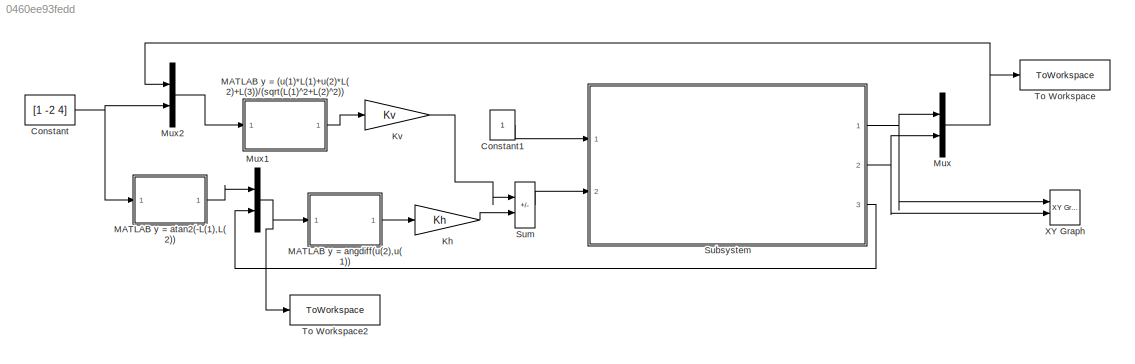
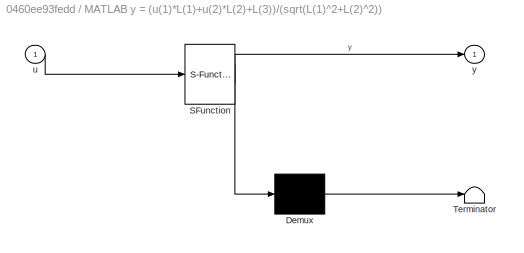
MODEL slx_0460ee93fedd
KIND model
CONFIG AbsTol = auto
CONFIG EnableMultiTasking = off
CONFIG FixedStep = auto
CONFIG MaxStep = auto
CONFIG MinStep = auto
CONFIG RelTol = 1e-3
CONFIG SampleTimeConstraint = Unconstrained
CONFIG SolverName = VariableStepAuto
CONFIG StartTime = 0.0
CONFIG StopTime = 50
BLOCK [Constant] Constant
  Value = [1 -2 4]
BLOCK [Constant] Constant1
BLOCK [Gain] Kh
  Gain = Kh
BLOCK [Gain] Kv
  Gain = Kv
BLOCK [SubSystem] MATLAB y = (u(1)*L(1)+u(2)*L(2)+L(3))//(sqrt(L(1)^2+L(2)^2))
  ErrorFcn = Stateflow.Translate.translate
  PermitHierarchicalResolution = ExplicitOnly
  Ports = [1, 1]
  RequestExecContextInheritance = off
  SFBlockType = MATLAB Function
  TreatAsAtomicUnit = on
BLOCK [Demux] MATLAB y = (u(1)*L(1)+u(2)*L(2)+L(3))//(sqrt(L(1)^2+L(2)^2))/ Demux 
  Outputs = 1
  Ports = [1, 1]
BLOCK [S-Function] MATLAB y = (u(1)*L(1)+u(2)*L(2)+L(3))//(sqrt(L(1)^2+L(2)^2))/ SFunction 
  EnableBusSupport = on
  FunctionName = sf_sfun
  PortCounts = [1 2]
  Ports = [1, 2]
  SFcnIsStateOwnerBlock = off
  SFunctionDeploymentMode = off
  Tag = Stateflow S-Function 1
BLOCK [Terminator] MATLAB y = (u(1)*L(1)+u(2)*L(2)+L(3))//(sqrt(L(1)^2+L(2)^2))/ Terminator 
BLOCK [Inport] MATLAB y = (u(1)*L(1)+u(2)*L(2)+L(3))//(sqrt(L(1)^2+L(2)^2))/u
BLOCK [Outport] MATLAB y = (u(1)*L(1)+u(2)*L(2)+L(3))//(sqrt(L(1)^2+L(2)^2))/y
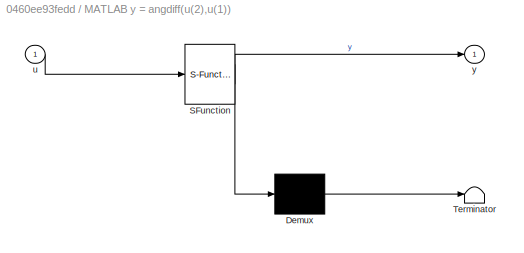
BLOCK [SubSystem] MATLAB y = angdiff(u(2),u(1))
  ErrorFcn = Stateflow.Translate.translate
  PermitHierarchicalResolution = ExplicitOnly
  Ports = [1, 1]
  RequestExecContextInheritance = off
  SFBlockType = MATLAB Function
  TreatAsAtomicUnit = on
BLOCK [Demux] MATLAB y = angdiff(u(2),u(1))/ Demux 
  Outputs = 1
  Ports = [1, 1]
BLOCK [S-Function] MATLAB y = angdiff(u(2),u(1))/ SFunction 
  EnableBusSupport = on
  FunctionName = sf_sfun
  PortCounts = [1 2]
  Ports = [1, 2]
  SFcnIsStateOwnerBlock = off
  SFunctionDeploymentMode = off
  Tag = Stateflow S-Function 2
BLOCK [Terminator] MATLAB y = angdiff(u(2),u(1))/ Terminator 
BLOCK [Inport] MATLAB y = angdiff(u(2),u(1))/u
BLOCK [Outport] MATLAB y = angdiff(u(2),u(1))/y
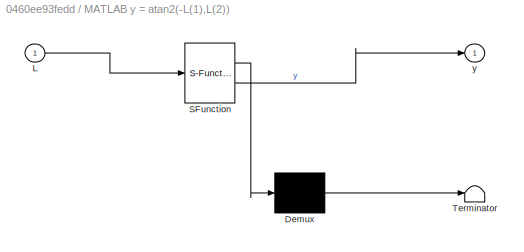
BLOCK [SubSystem] MATLAB y = atan2(-L(1),L(2))
  ErrorFcn = Stateflow.Translate.translate
  PermitHierarchicalResolution = ExplicitOnly
  Ports = [1, 1]
  RequestExecContextInheritance = off
  SFBlockType = MATLAB Function
  TreatAsAtomicUnit = on
BLOCK [Demux] MATLAB y = atan2(-L(1),L(2))/ Demux 
  Outputs = 1
  Ports = [1, 1]
BLOCK [S-Function] MATLAB y = atan2(-L(1),L(2))/ SFunction 
  EnableBusSupport = on
  FunctionName = sf_sfun
  PortCounts = [1 2]
  Ports = [1, 2]
  SFcnIsStateOwnerBlock = off
  SFunctionDeploymentMode = off
  Tag = Stateflow S-Function 3
BLOCK [Terminator] MATLAB y = atan2(-L(1),L(2))/ Terminator 
BLOCK [Inport] MATLAB y = atan2(-L(1),L(2))/L
BLOCK [Outport] MATLAB y = atan2(-L(1),L(2))/y
BLOCK [Mux] Mux
  DisplayOption = bar
  Inputs = 2
  Ports = [2, 1]
BLOCK [Mux] Mux1
  DisplayOption = bar
  Inputs = 2
  Ports = [2, 1]
BLOCK [Mux] Mux2
  DisplayOption = bar
  Inputs = 2
  Ports = [2, 1]
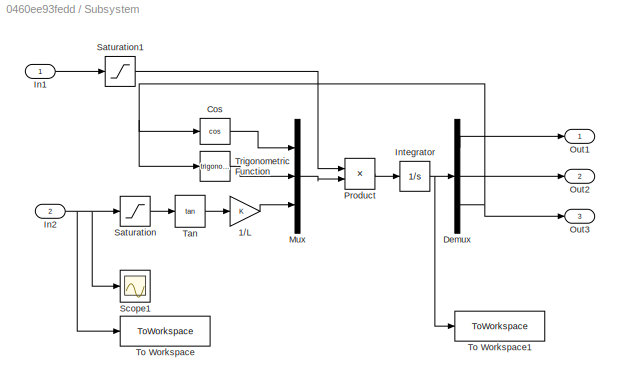
BLOCK [SubSystem] Subsystem
  Ports = [2, 3]
  RequestExecContextInheritance = off
BLOCK [Gain] Subsystem/1//L
BLOCK [Trigonometry] Subsystem/Cos
  Operator = cos
  Ports = [1, 1]
BLOCK [Demux] Subsystem/Demux
  Outputs = 3
  Ports = [1, 3]
BLOCK [Inport] Subsystem/In1
BLOCK [Inport] Subsystem/In2
  Port = 2
BLOCK [Integrator] Subsystem/Integrator
  InitialCondition = [8 5 pi/2]
  Ports = [1, 1]
BLOCK [Mux] Subsystem/Mux
  DisplayOption = bar
  Inputs = 3
  Ports = [3, 1]
BLOCK [Outport] Subsystem/Out1
BLOCK [Outport] Subsystem/Out2
  Port = 2
BLOCK [Outport] Subsystem/Out3
  Port = 3
BLOCK [Product] Subsystem/Product
  Ports = [2, 1]
BLOCK [Saturate] Subsystem/Saturation
  LowerLimit = -1
  UpperLimit = 1
BLOCK [Saturate] Subsystem/Saturation1
  LowerLimit = -1
  UpperLimit = 1
BLOCK [Scope] Subsystem/Scope1
  Floating = off
  NumInputPorts = 1
  Ports = [1]
  ScopeSpecificationString = Simulink.scopes.TimeScopeBlockCfg('CurrentConfiguration', extmgr.ConfigurationSet(extmgr.Configuration('Core','General UI',true),extmgr.Configuration('Core','Source UI',true),extmgr.Configuration('Sources','WiredSimulink',true,'DataLoggingVariableName','ScopeData1'),extmgr.Configuration('Visuals','Time Domain',true,'SerializedDisplays',{struct('MinYLimReal','-0.625','MaxYLimReal','0.625','YLabelRe...<+1350ch>
BLOCK [Trigonometry] Subsystem/Tan
  Operator = tan
  Ports = [1, 1]
BLOCK [ToWorkspace] Subsystem/To Workspace
  FixptAsFi = on
  MaxDataPoints = inf
  Ports = [1]
  SampleTime = -1
  SaveFormat = Timeseries
  VariableName = in
BLOCK [ToWorkspace] Subsystem/To Workspace1
  FixptAsFi = on
  MaxDataPoints = inf
  Ports = [1]
  SampleTime = -1
  SaveFormat = Timeseries
  VariableName = out
BLOCK [Trigonometry] Subsystem/Trigonometric Function
  Ports = [1, 1]
BLOCK [Sum] Sum
  IconShape = rectangular
  Inputs = |-+
  Ports = [2, 1]
BLOCK [ToWorkspace] To Workspace
  FixptAsFi = on
  MaxDataPoints = inf
  Ports = [1]
  SampleTime = -1
  SaveFormat = Timeseries
  VariableName = y
BLOCK [ToWorkspace] To Workspace2
  FixptAsFi = on
  MaxDataPoints = inf
  Ports = [1]
  SampleTime = -1
  SaveFormat = Timeseries
  VariableName = u
BLOCK [Reference] XY Graph  REF=simulink/Sinks/XY Graph
  Ports = [2]
  SourceBlock = simulink/Sinks/XY Graph
  SourceProductBaseCode = SL
  SourceType = XY scope.
LINE Constant1:1 -> Subsystem:1
NET Constant:1 -> MATLAB y = atan2(-L(1),L(2)):1, Mux2:2
LINE Kh:1 -> Sum:2
LINE Kv:1 -> Sum:1
LINE MATLAB y = (u(1)*L(1)+u(2)*L(2)+L(3))//(sqrt(L(1)^2+L(2)^2)):1 -> Kv:1
LINE MATLAB y = angdiff(u(2),u(1)):1 -> Kh:1
LINE MATLAB y = atan2(-L(1),L(2)):1 -> Mux1:1
NET Mux1:1 -> MATLAB y = angdiff(u(2),u(1)):1, To Workspace2:1
LINE Mux2:1 -> MATLAB y = (u(1)*L(1)+u(2)*L(2)+L(3))//(sqrt(L(1)^2+L(2)^2)):1
NET Mux:1 -> Mux2:1, To Workspace:1
LINE Subsystem/1//L:1 -> Subsystem/Mux:3
LINE Subsystem/Cos:1 -> Subsystem/Mux:1
LINE Subsystem/Demux:1 -> Subsystem/Out1:1
LINE Subsystem/Demux:2 -> Subsystem/Out2:1
NET Subsystem/Demux:3 -> Subsystem/Cos:1, Subsystem/Out3:1, Subsystem/Trigonometric Function:1
LINE Subsystem/In1:1 -> Subsystem/Saturation1:1
NET Subsystem/In2:1 -> Subsystem/Saturation:1, Subsystem/Scope1:1, Subsystem/To Workspace:1
NET Subsystem/Integrator:1 -> Subsystem/Demux:1, Subsystem/To Workspace1:1
LINE Subsystem/Mux:1 -> Subsystem/Product:2
LINE Subsystem/Product:1 -> Subsystem/Integrator:1
LINE Subsystem/Saturation1:1 -> Subsystem/Product:1
LINE Subsystem/Saturation:1 -> Subsystem/Tan:1
LINE Subsystem/Tan:1 -> Subsystem/1//L:1
LINE Subsystem/Trigonometric Function:1 -> Subsystem/Mux:2
NET Subsystem:1 -> Mux:1, XY Graph:1
NET Subsystem:2 -> Mux:2, XY Graph:2
LINE Subsystem:3 -> Mux1:2
LINE Sum:1 -> Subsystem:2
note: NET lines group one-source signal fan-out (src -> all destinations, sorted); 1:1 wires keep LINE
CHART MATLAB y = angdiff(u(2),u(1)) states=1 transitions=1
  STATE_LABEL 'eML_blk_kernel()'
  STATE_LABEL 'SCRIPT:\nfunction y= fcn(u)\n    y = angdiff(u(2), u(1));\nend\n    \n% function y= fcn(beta, alpha)\n% \n%     gama=alpha-beta;\n% \n%     if abs(gama)>2*pi\n%         gama1=gama-fix(gama/2/pi)*2*pi; %removes the decimals\n%     else\n%         gama1=gama;\n%     end\n% \n%     if abs(gama1)>pi\n%        if gama1>0\n%            y=gama1-2*pi;\n%        else\n%            y=gama1+2*pi;\n%        end\n%     else\n%     ...<+32ch>'
CHART MATLAB y = atan2(-L(1),L(2)) states=1 transitions=1
  STATE_LABEL 'eML_blk_kernel()'
  STATE_LABEL 'SCRIPT:\nfunction y = fcn(L)\n\ny = atan2(-L(1),L(2));\n'
CHART MATLAB y = (u(1)*L(1)+u(2)*L(2)+L(3))//(sqrt(L(1)^2+L(2)^2)) states=1 transitions=1
  STATE_LABEL 'eML_blk_kernel()'
  STATE_LABEL 'SCRIPT:\nfunction y = fcn(u)\n\ny = (u(1)*u(3)+u(2)*u(4)+u(5))/(sqrt(u(3)^2+u(4)^2));\n'
CHART  states=0 transitions=0
CHART  states=0 transitions=0
CHART  states=0 transitions=0
